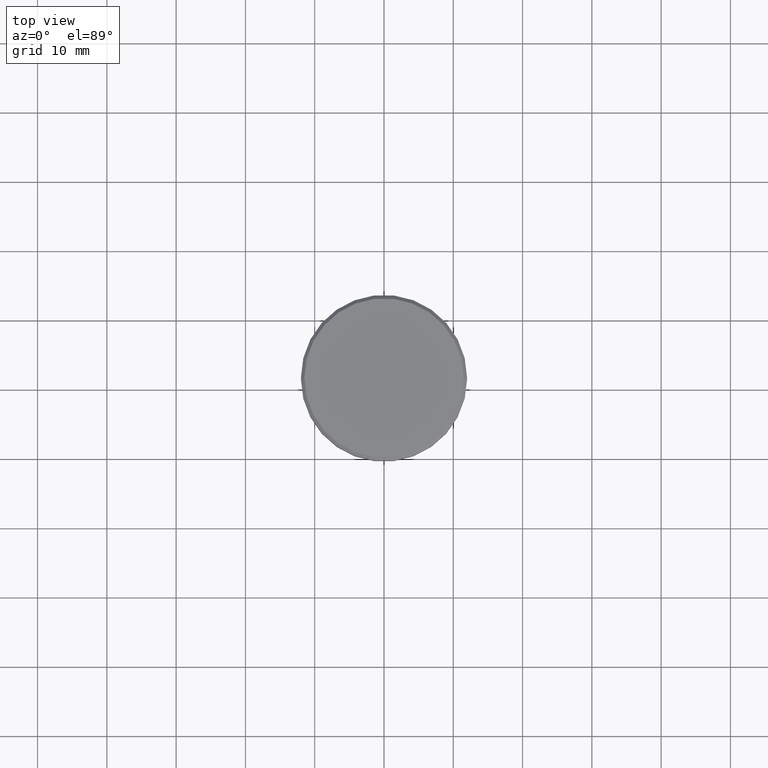
[diagram: clean part render]
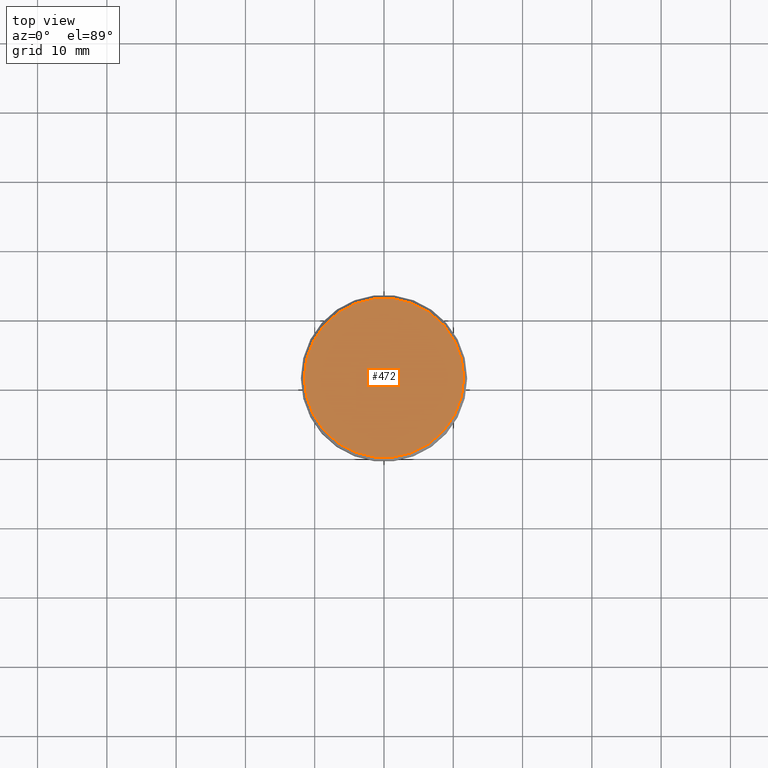
[diagram: same view with one face highlighted and labeled with its STEP entity id]
A machine part, top view. The second image highlights one B-rep face of the part: STEP entity #472.
In plain terms, the highlighted planar face has unit normal (0, -0, 1).
Its self-contained STEP definition (entity closure, byte-faithful):
#38 = CARTESIAN_POINT ( 'NONE',  ( 0.000000000000000000, 0.000000000000000000, 0.000000000000000000 ) ) ;
#50 = AXIS2_PLACEMENT_3D ( 'NONE', #611, #977, #520 ) ;
#60 = EDGE_CURVE ( 'NONE', #91, #1039, #605, .T. ) ;
#91 = VERTEX_POINT ( 'NONE', #958 ) ;
#96 = ORIENTED_EDGE ( 'NONE', *, *, #322, .T. ) ;
#126 = AXIS2_PLACEMENT_3D ( 'NONE', #38, #596, #324 ) ;
#150 = ORIENTED_EDGE ( 'NONE', *, *, #60, .T. ) ;
#207 = FACE_OUTER_BOUND ( 'NONE', #490, .T. ) ;
#268 = AXIS2_PLACEMENT_3D ( 'NONE', #354, #270, #1020 ) ;
#270 = DIRECTION ( 'NONE',  ( 0.000000000000000000, -0.000000000000000000, 1.000000000000000000 ) ) ;
#322 = EDGE_CURVE ( 'NONE', #1039, #91, #564, .T. ) ;
#324 = DIRECTION ( 'NONE',  ( 1.000000000000000000, 0.000000000000000000, 0.000000000000000000 ) ) ;
#354 = CARTESIAN_POINT ( 'NONE',  ( 0.000000000000000000, 0.000000000000000000, 0.000000000000000000 ) ) ;
#472 = ADVANCED_FACE ( 'NONE', ( #207 ), #662, .T. ) ;
#490 = EDGE_LOOP ( 'NONE', ( #150, #96 ) ) ;
#520 = DIRECTION ( 'NONE',  ( 1.000000000000000000, 0.000000000000000000, 0.000000000000000000 ) ) ;
#564 = CIRCLE ( 'NONE', #50, 11.49999999999998046 ) ;
#596 = DIRECTION ( 'NONE',  ( -0.000000000000000000, -0.000000000000000000, 1.000000000000000000 ) ) ;
#605 = CIRCLE ( 'NONE', #126, 11.49999999999998046 ) ;
#611 = CARTESIAN_POINT ( 'NONE',  ( 0.000000000000000000, 0.000000000000000000, 0.000000000000000000 ) ) ;
#662 = PLANE ( 'NONE',  #268 ) ;
#689 = CARTESIAN_POINT ( 'NONE',  ( 11.49999999999998046, 1.438959988998138582E-15, 0.000000000000000000 ) ) ;
#958 = CARTESIAN_POINT ( 'NONE',  ( -11.49999999999998046, 0.000000000000000000, 0.000000000000000000 ) ) ;
#977 = DIRECTION ( 'NONE',  ( -0.000000000000000000, -0.000000000000000000, 1.000000000000000000 ) ) ;
#1020 = DIRECTION ( 'NONE',  ( 1.000000000000000000, 0.000000000000000000, 0.000000000000000000 ) ) ;
#1039 = VERTEX_POINT ( 'NONE', #689 ) ;